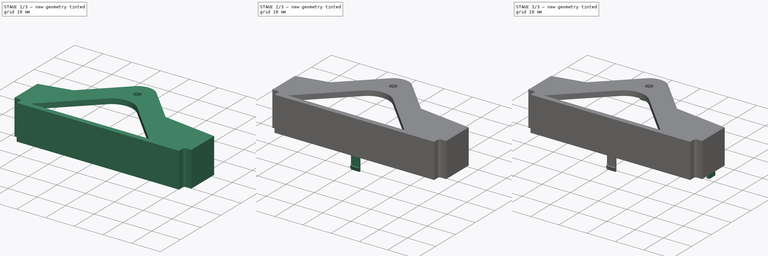
[diagram: build sequence overview — one tinted view per stage of 3, left to right]
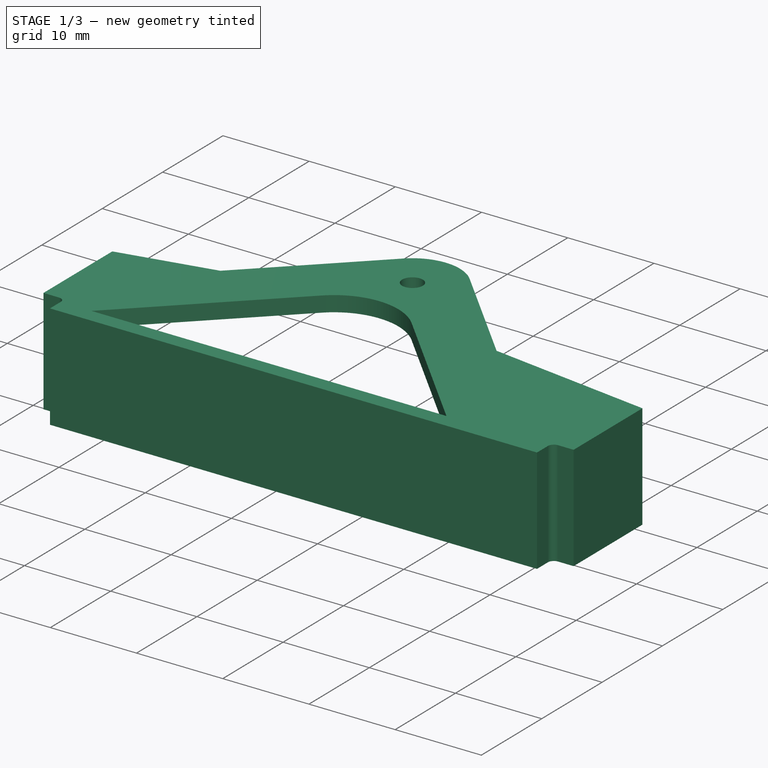
[diagram: stage 1 of 3 — iso view after this stage's code; geometry added in this stage tinted green]
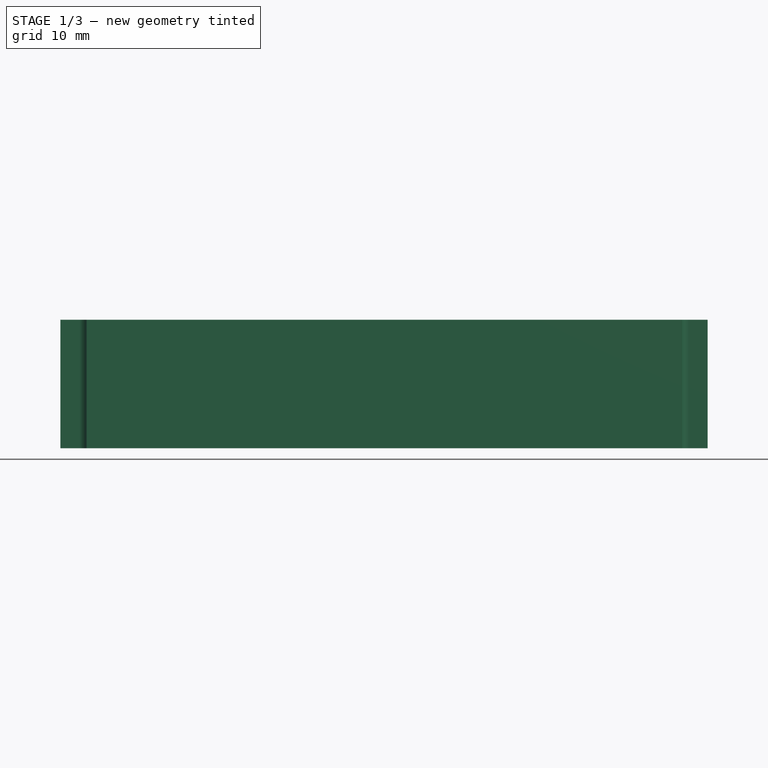
[diagram: stage 1 of 3 — front view after this stage's code; geometry added in this stage tinted green]
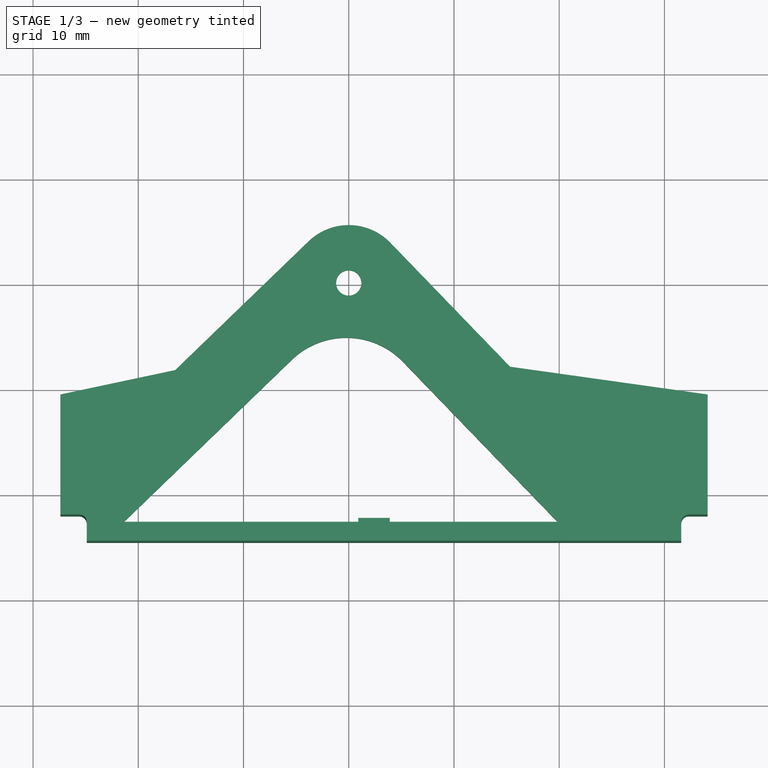
[diagram: stage 1 of 3 — top view after this stage's code; geometry added in this stage tinted green]
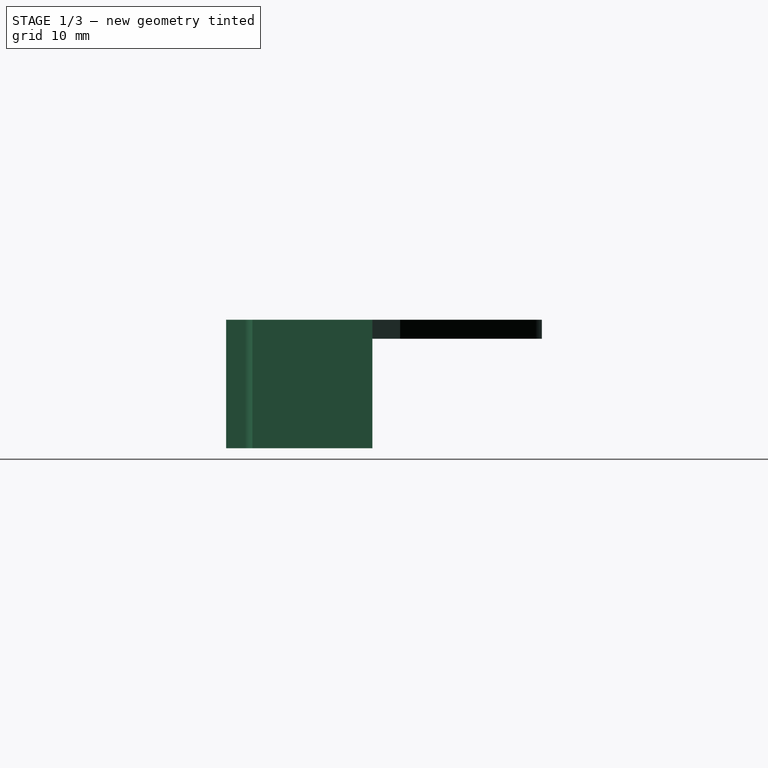
[diagram: stage 1 of 3 — right view after this stage's code; geometry added in this stage tinted green]
FCSTD DOCUMENT  (FreeCAD 0.16R4928 (Git))
Label: multi_camera_mount_a_p2
License: All rights reserved
LicenseURL: http://en.wikipedia.org/wiki/All_rights_reserved
objects: Sketcher::SketchObject×9, PartDesign::Pad×7, PartDesign::Pocket×1
note: 25 computed .brp shape members not serialized (recipe doc carries the construction recipe); baked Part::Feature solids carry a one-line shape summary decoded from their .brp

FEATURE [Sketcher::SketchObject] Sketch
  sketch-geometry (21):
    g0: Circle CenterX=0 CenterY=0 CenterZ=0 NormalX=0 NormalY=0 NormalZ=1 Radius=1.2
    g1: LineSegment StartX=-24.9 StartY=-24.5 StartZ=0 EndX=31.6 EndY=-24.5 EndZ=0
    g2: LineSegment StartX=-24.9 StartY=-24.5 StartZ=0 EndX=-24.9 EndY=-22.7 EndZ=0
    g3: LineSegment StartX=-25.6 StartY=-22 StartZ=0 EndX=-27.4 EndY=-22 EndZ=0
    g4: ArcOfCircle CenterX=-25.6 CenterY=-22.7 CenterZ=0 NormalX=0 NormalY=0 NormalZ=1 Radius=0.7 StartAngle=0 EndAngle=1.5708
    g5: LineSegment StartX=31.6 StartY=-24.5 StartZ=0 EndX=31.6 EndY=-22.7 EndZ=0
    g6: LineSegment StartX=32.3 StartY=-22 StartZ=0 EndX=34.1 EndY=-22 EndZ=0
    g7: ArcOfCircle CenterX=32.3 CenterY=-22.7 CenterZ=0 NormalX=0 NormalY=0 NormalZ=1 Radius=0.7 StartAngle=1.5708 EndAngle=3.14159
    g8: LineSegment StartX=-27.4 StartY=-22 StartZ=0 EndX=-27.4 EndY=-10.6 EndZ=0
    g9: LineSegment StartX=34.1 StartY=-22 StartZ=0 EndX=34.1 EndY=-10.6 EndZ=0
    g10: LineSegment StartX=-27.4 StartY=-10.6 StartZ=0 EndX=-16.4936 EndY=-8.28177 EndZ=0
    g11: LineSegment StartX=-16.4936 StartY=-8.28177 StartZ=0 EndX=-3.82062 EndY=3.95637 EndZ=0
    g12: LineSegment StartX=3.95637 StartY=3.82062 StartZ=0 EndX=15.3355 EndY=-7.96282 EndZ=0
    g13: LineSegment StartX=15.3355 StartY=-7.96282 StartZ=0 EndX=34.1 EndY=-10.6 EndZ=0
    g14: ArcOfCircle CenterX=0 CenterY=0 CenterZ=0 NormalX=0 NormalY=0 NormalZ=1 Radius=5.5 StartAngle=0.767945 EndAngle=2.33874
    g15: LineSegment StartX=-21.3472 StartY=-22.7 StartZ=0 EndX=19.8359 EndY=-22.7 EndZ=0
    g16: LineSegment StartX=-21.3472 StartY=-22.7 StartZ=0 EndX=-5.40855 EndY=-7.30822 EndZ=0
    g17: LineSegment StartX=5.1502 StartY=-7.49253 StartZ=0 EndX=19.8359 EndY=-22.7 EndZ=0
    g18: ArcOfCircle CenterX=-0.221326 CenterY=-12.6798 CenterZ=0 NormalX=0 NormalY=0 NormalZ=1 Radius=7.4673 StartAngle=0.767945 EndAngle=2.33874
    g19: LineSegment [constr] StartX=-5.40855 StartY=-7.30822 StartZ=0 EndX=-10.2712 EndY=-2.27284 EndZ=0
    g20: LineSegment [constr] StartX=5.1502 StartY=-7.49253 StartZ=0 EndX=10.1856 EndY=-2.62992 EndZ=0
  constraints (59):
    c: Coincident(g0,g-1)
    c: Radius(g0) = 1.2
    c: Horizontal(g1)
    c: Distance(g1) = 56.5
    c: Coincident(g2,g1)
    c: Vertical(g2)
    c: Horizontal(g3)
    c: Tangent(g3,g4) = -1.5708
    c: Tangent(g2,g4) = -1.5708
    c: Equal(g3,g2)
    c: Radius(g4) = 0.7
    c: DistanceX(g3,g1) = 2.5
    c: Coincident(g5,g1)
    c: Vertical(g5)
    c: Horizontal(g6)
    c: Tangent(g6,g7) = 1.5708
    c: Tangent(g5,g7) = 1.5708
    c: Equal(g5,g6)
    c: Equal(g6,g3)
    c: Equal(g4,g7)
    c: Coincident(g8,g3)
    c: Vertical(g8)
    c: Coincident(g9,g6)
    c: Vertical(g9)
    c: Equal(g9,g8)
    c: Distance(g8) = 11.4
    c: Coincident(g10,g8)
    c: Coincident(g11,g10)
    c: Angle(g8,g10) = 1.78024
    c: Coincident(g13,g12)
    c: Coincident(g13,g9)
    c: Angle(g13,g9) = 1.71042
    c: Angle(g13,g12) = 2.47837
    c: Coincident(g14,g-1)
    c: Coincident(g14,g11)
    c: Coincident(g14,g12)
    c: Radius(g14) = 5.5
    c: DistanceY(g-1,g1) = -24.5
    c: DistanceX(g-1,g9) = 34.1
    c: Perpendicular(g11,g12)
    c: Tangent(g14,g11)
    c: Tangent(g14,g12)
    c: Horizontal(g15)
    c: Coincident(g16,g15)
    c: Coincident(g17,g15)
    c: Tangent(g16,g18) = 1.5708
    c: Tangent(g17,g18) = 1.5708
    c: Parallel(g11,g16)
    c: DistanceY(g15,g1) = -1.8
    c: Coincident(g19,g16)
    c: PointOnObject(g19,g11)
    c: Coincident(g20,g17)
    c: PointOnObject(g20,g12)
    c: Perpendicular(g12,g20)
    c: Perpendicular(g19,g11)
    c: Equal(g19,g20)
    c: Perpendicular(g17,g20)
    c: Distance(g20) = 7
    c: PointOnObject(g18,g-2)
FEATURE [PartDesign::Pad] Pad
  Length = 1.8
  Length2 = 100
  Sketch = -> Sketch
  Type = 0
FEATURE [Sketcher::SketchObject] Sketch001
  ExternalGeometry = -> [Pad]
  Placement = pos=(0,0,0) rot=(1,0,0;3.14159rad)
  Support = -> Pad [Face20]
  sketch-geometry (17):
    g0: LineSegment StartX=-27.4 StartY=22 StartZ=0 EndX=-25.6 EndY=22 EndZ=0
    g1: LineSegment StartX=-24.9 StartY=24.5 StartZ=0 EndX=-24.9 EndY=22.7 EndZ=0
    g2: ArcOfCircle CenterX=-25.6 CenterY=22.7 CenterZ=0 NormalX=0 NormalY=0 NormalZ=1 Radius=0.7 StartAngle=4.71239 EndAngle=6.28319
    g3: LineSegment StartX=31.6 StartY=24.5 StartZ=0 EndX=-24.9 EndY=24.5 EndZ=0
    g4: LineSegment StartX=31.6 StartY=24.5 StartZ=0 EndX=31.6 EndY=22.7 EndZ=0
    g5: LineSegment StartX=32.3 StartY=22 StartZ=0 EndX=34.1 EndY=22 EndZ=0
    g6: LineSegment StartX=34.1 StartY=22 StartZ=0 EndX=34.1 EndY=10.6 EndZ=0
    g7: LineSegment StartX=-27.4 StartY=22 StartZ=0 EndX=-27.4 EndY=10.6 EndZ=0
    g8: LineSegment StartX=-27.4 StartY=10.6 StartZ=0 EndX=-25.6 EndY=10.6 EndZ=0
    g9: LineSegment StartX=-25.6 StartY=10.6 StartZ=0 EndX=-25.6 EndY=20.2 EndZ=0
    g10: ArcOfCircle CenterX=-25.6 CenterY=22.7 CenterZ=0 NormalX=0 NormalY=0 NormalZ=1 Radius=2.5 StartAngle=4.71239 EndAngle=6.28319
    g11: LineSegment StartX=-23.1 StartY=22.7 StartZ=0 EndX=29.8 EndY=22.7 EndZ=0
    g12: LineSegment [constr] StartX=-24.9 StartY=22.7 StartZ=0 EndX=-23.1 EndY=22.7 EndZ=0
    g13: ArcOfCircle CenterX=32.3 CenterY=22.7 CenterZ=0 NormalX=0 NormalY=0 NormalZ=1 Radius=2.5 StartAngle=3.14159 EndAngle=4.71239
    g14: LineSegment StartX=32.3 StartY=20.2 StartZ=0 EndX=32.3 EndY=10.6 EndZ=0
    g15: LineSegment StartX=32.3 StartY=10.6 StartZ=0 EndX=34.1 EndY=10.6 EndZ=0
    g16: ArcOfCircle CenterX=32.3 CenterY=22.7 CenterZ=0 NormalX=0 NormalY=0 NormalZ=1 Radius=0.7 StartAngle=3.14159 EndAngle=4.71239
  constraints (42):
    c: Coincident(g0,g-6)
    c: Coincident(g0,g-5)
    c: Coincident(g1,g-3)
    c: Coincident(g1,g-4)
    c: Coincident(g2,g-7)
    c: Coincident(g2,g0)
    c: Coincident(g2,g1)
    c: Coincident(g3,g-8)
    c: Coincident(g3,g1)
    c: Coincident(g4,g3)
    c: Coincident(g4,g-11)
    c: Coincident(g5,g-11)
    c: Coincident(g5,g-12)
    c: Coincident(g6,g5)
    c: Coincident(g6,g-13)
    c: Coincident(g7,g0)
    c: Coincident(g7,g-14)
    c: Coincident(g8,g7)
    c: Horizontal(g8)
    c: Coincident(g9,g8)
    c: Vertical(g9)
    c: Coincident(g10,g2)
    c: Coincident(g10,g9)
    c: Coincident(g11,g10)
    c: Horizontal(g11)
    c: PointOnObject(g-15,g11)
    c: PointOnObject(g0,g9)
    c: Coincident(g12,g1)
    c: Coincident(g12,g10)
    c: Equal(g12,g1)
    c: Coincident(g13,g-11)
    c: Coincident(g13,g11)
    c: Coincident(g14,g13)
    c: Vertical(g14)
    c: Coincident(g15,g14)
    c: Coincident(g15,g6)
    c: Horizontal(g15)
    c: Equal(g14,g9)
    c: Equal(g10,g13)
    c: Coincident(g16,g13)
    c: Coincident(g16,g4)
    c: Coincident(g16,g5)
FEATURE [PartDesign::Pad] Pad001
  Length = 10.4
  Length2 = 100
  Sketch = -> Sketch001
  Type = 0
FEATURE [Sketcher::SketchObject] Sketch002
  ExternalGeometry = -> [Pad001]
  Placement = pos=(0,-22.7,0) rot=(0,0.707107,0.707107;3.14159rad)
  Support = -> Pad001 [Face31]
  sketch-geometry (4):
    g0: LineSegment StartX=-0.9 StartY=-10.4 StartZ=0 EndX=-3.9 EndY=-10.4 EndZ=0
    g1: LineSegment StartX=-3.9 StartY=-10.4 StartZ=0 EndX=-3.9 EndY=-5.4 EndZ=0
    g2: LineSegment StartX=-3.9 StartY=-5.4 StartZ=0 EndX=-0.9 EndY=-5.4 EndZ=0
    g3: LineSegment StartX=-0.9 StartY=-5.4 StartZ=0 EndX=-0.9 EndY=-10.4 EndZ=0
  constraints (12):
    c: Coincident(g0,g1)
    c: Coincident(g1,g2)
    c: Coincident(g2,g3)
    c: Coincident(g3,g0)
    c: Horizontal(g0)
    c: Horizontal(g2)
    c: Vertical(g1)
    c: Vertical(g3)
    c: PointOnObject(g0,g-3)
    c: Distance(g2) = 3
    c: Distance(g1) = 5
    c: DistanceX(g0,g-3) = 27
FEATURE [PartDesign::Pad] Pad002
  Length = 0.5
  Length2 = 100
  Sketch = -> Sketch002
  Type = 0
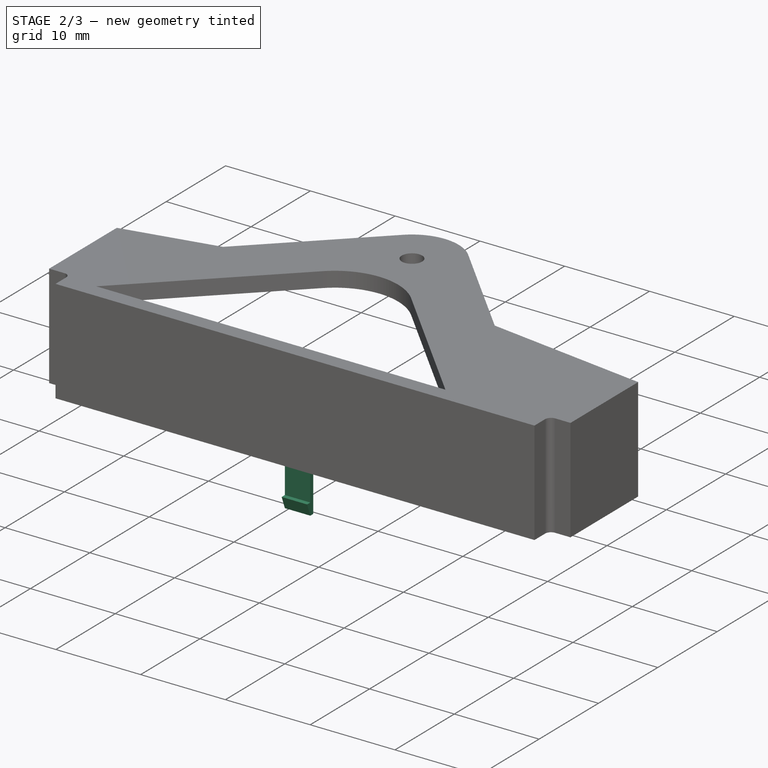
[diagram: stage 2 of 3 — iso view after this stage's code; geometry added in this stage tinted green]
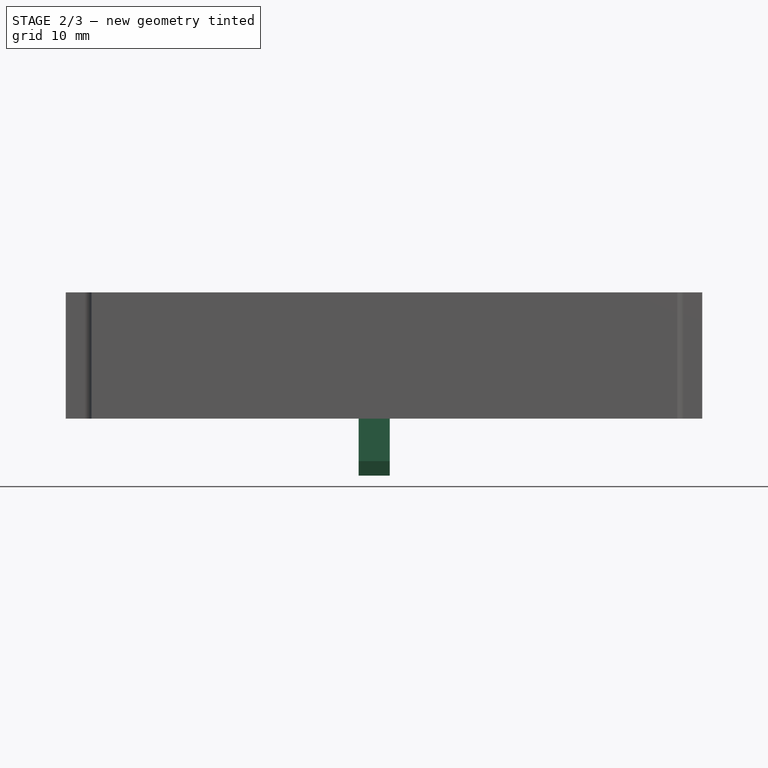
[diagram: stage 2 of 3 — front view after this stage's code; geometry added in this stage tinted green]
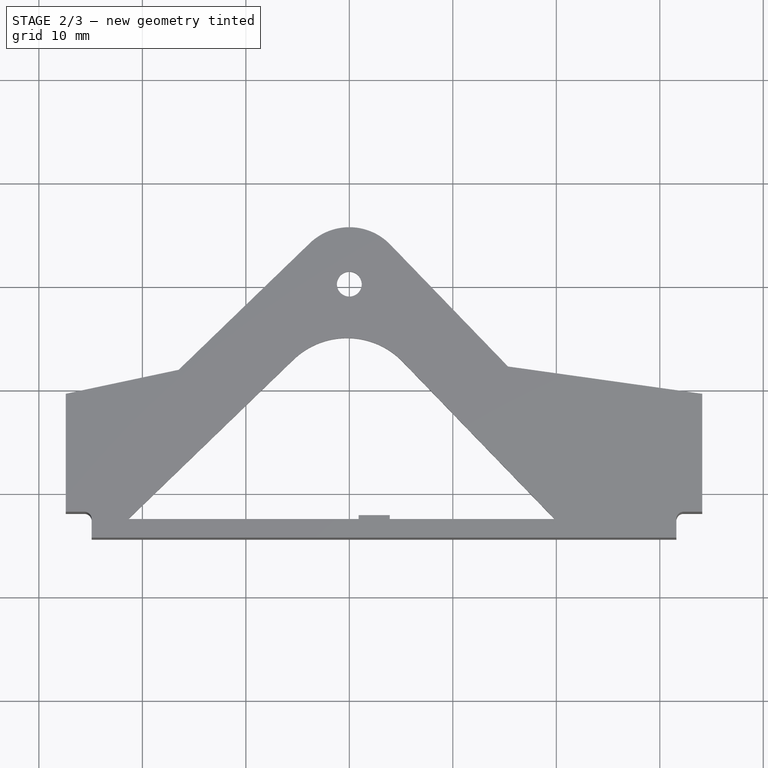
[diagram: stage 2 of 3 — top view after this stage's code; geometry added in this stage tinted green]
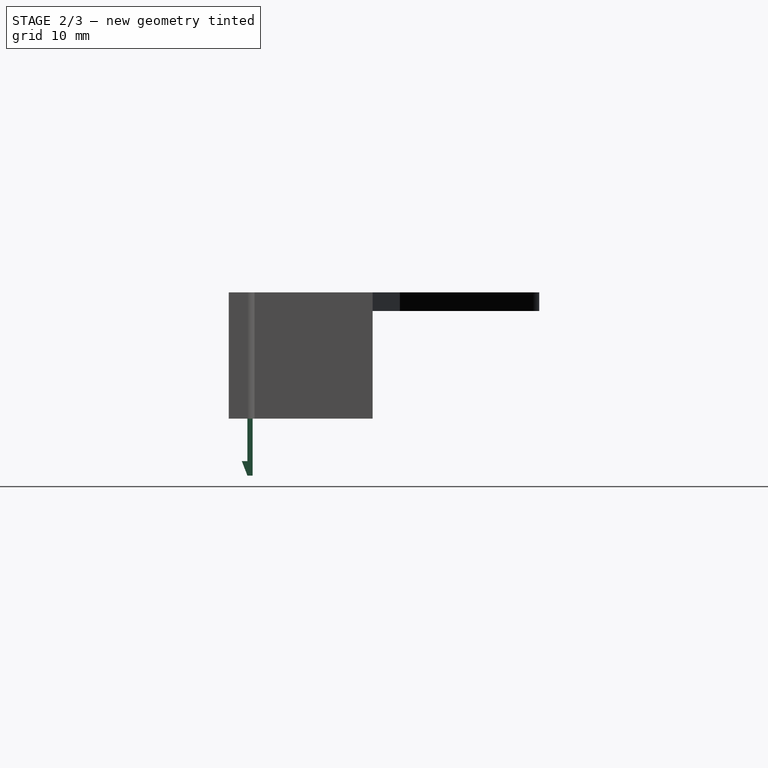
[diagram: stage 2 of 3 — right view after this stage's code; geometry added in this stage tinted green]
FEATURE [Sketcher::SketchObject] Sketch003
  ExternalGeometry = -> [Pad002]
  Placement = pos=(0,0,-10.4) rot=(1,0,0;3.14159rad)
  Support = -> Pad002 [Face42]
  sketch-geometry (4):
    g0: LineSegment StartX=0.9 StartY=22.7 StartZ=0 EndX=3.9 EndY=22.7 EndZ=0
    g1: LineSegment StartX=3.9 StartY=22.7 StartZ=0 EndX=3.9 EndY=22.2 EndZ=0
    g2: LineSegment StartX=3.9 StartY=22.2 StartZ=0 EndX=0.9 EndY=22.2 EndZ=0
    g3: LineSegment StartX=0.9 StartY=22.2 StartZ=0 EndX=0.9 EndY=22.7 EndZ=0
  constraints (10):
    c: Coincident(g0,g1)
    c: Coincident(g1,g2)
    c: Coincident(g2,g3)
    c: Coincident(g3,g0)
    c: Horizontal(g0)
    c: Horizontal(g2)
    c: Vertical(g1)
    c: Vertical(g3)
    c: Coincident(g0,g-3)
    c: Coincident(g1,g-4)
FEATURE [PartDesign::Pad] Pad003
  Length = 4.1
  Length2 = 100
  Sketch = -> Sketch003
  Type = 0
FEATURE [Sketcher::SketchObject] Sketch004
  ExternalGeometry = -> [Pad003]
  Placement = pos=(0,0,-14.5) rot=(1,0,0;3.14159rad)
  Support = -> Pad003 [Face46]
  sketch-geometry (4):
    g0: LineSegment StartX=3.9 StartY=22.2 StartZ=0 EndX=0.9 EndY=22.2 EndZ=0
    g1: LineSegment StartX=0.9 StartY=22.2 StartZ=0 EndX=0.9 EndY=23.24 EndZ=0
    g2: LineSegment StartX=0.9 StartY=23.24 StartZ=0 EndX=3.9 EndY=23.24 EndZ=0
    g3: LineSegment StartX=3.9 StartY=23.24 StartZ=0 EndX=3.9 EndY=22.2 EndZ=0
  constraints (11):
    c: Coincident(g0,g1)
    c: Coincident(g1,g2)
    c: Coincident(g2,g3)
    c: Coincident(g3,g0)
    c: Horizontal(g0)
    c: Horizontal(g2)
    c: Vertical(g1)
    c: Vertical(g3)
    c: Coincident(g0,g-4)
    c: PointOnObject(g-3,g1)
    c: DistanceY(g-3,g1) = 0.54
FEATURE [Sketcher::SketchObject] Sketch005
  ExternalGeometry = -> [Pad003]
  Placement = pos=(0.9,0,0) rot=(0.57735,-0.57735,-0.57735;2.0944rad)
  Support = -> Pad003 [Face44]
  sketch-geometry (4):
    g0: LineSegment StartX=22.2 StartY=-14.5 StartZ=0 EndX=23.24 EndY=-14.5 EndZ=0
    g1: LineSegment StartX=23.24 StartY=-14.5 StartZ=0 EndX=22.7 EndY=-15.9 EndZ=0
    g2: LineSegment StartX=22.7 StartY=-15.9 StartZ=0 EndX=22.2 EndY=-15.9 EndZ=0
    g3: LineSegment StartX=22.2 StartY=-15.9 StartZ=0 EndX=22.2 EndY=-14.5 EndZ=0
  constraints (11):
    c: Coincident(g0,g1)
    c: Coincident(g1,g2)
    c: Coincident(g2,g3)
    c: Coincident(g3,g0)
    c: Horizontal(g0)
    c: Horizontal(g2)
    c: Vertical(g3)
    c: Coincident(g0,g-3)
    c: DistanceX(g-4,g0) = 0.54
    c: PointOnObject(g1,g-5)
    c: Distance(g3) = 1.4
FEATURE [PartDesign::Pad] Pad004
  Length = 10
  Length2 = 100
  Reversed = true
  Sketch = -> Sketch005
  Type = 3
  UpToFace = -> Pad003 [Face45]
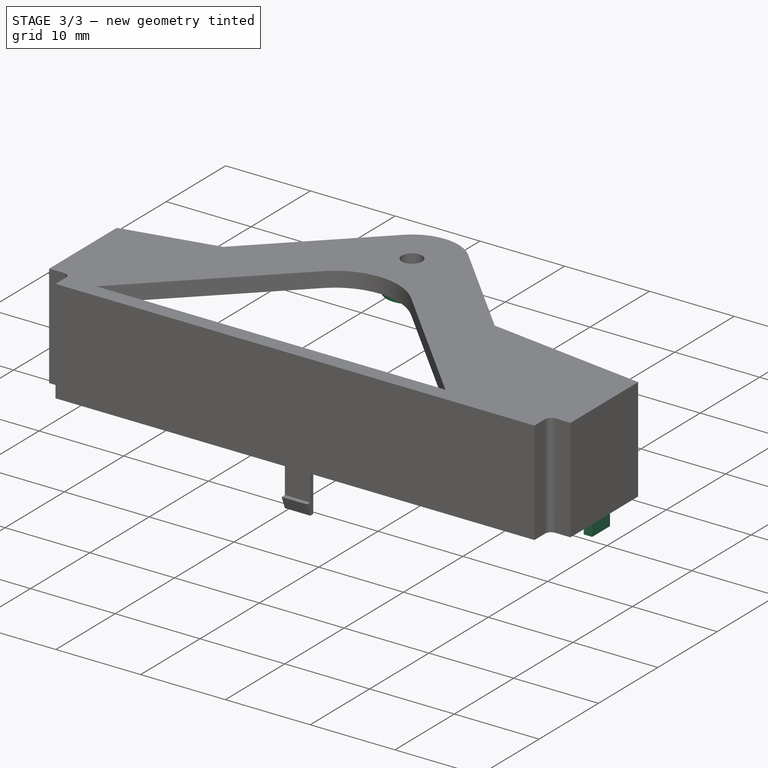
[diagram: stage 3 of 3 — iso view after this stage's code; geometry added in this stage tinted green]
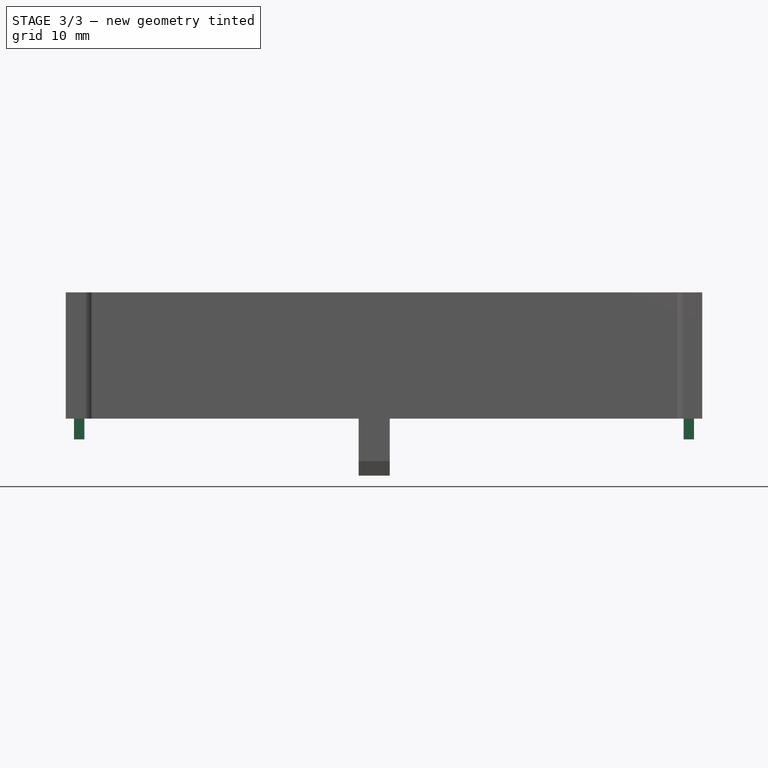
[diagram: stage 3 of 3 — front view after this stage's code; geometry added in this stage tinted green]
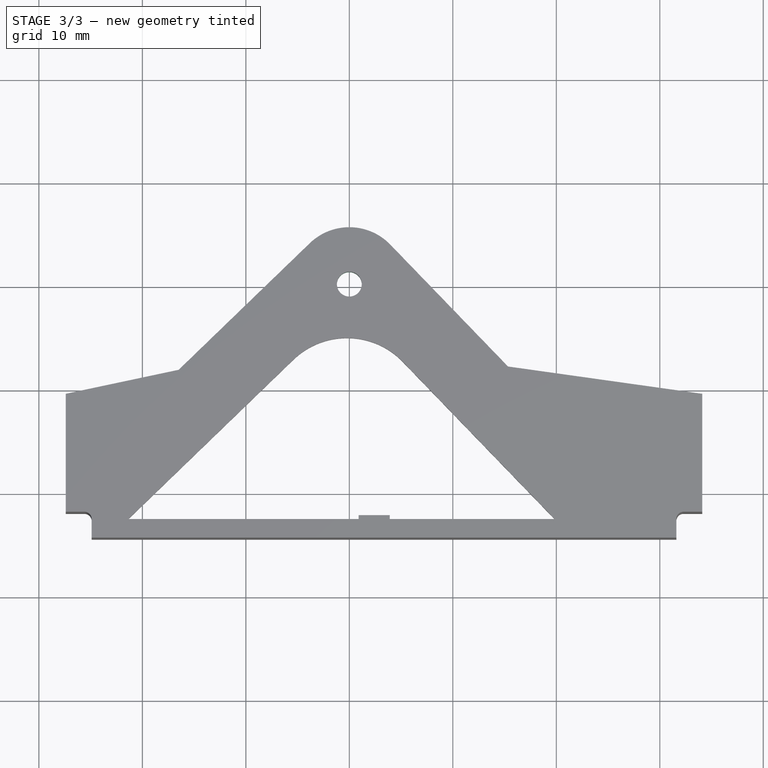
[diagram: stage 3 of 3 — top view after this stage's code; geometry added in this stage tinted green]
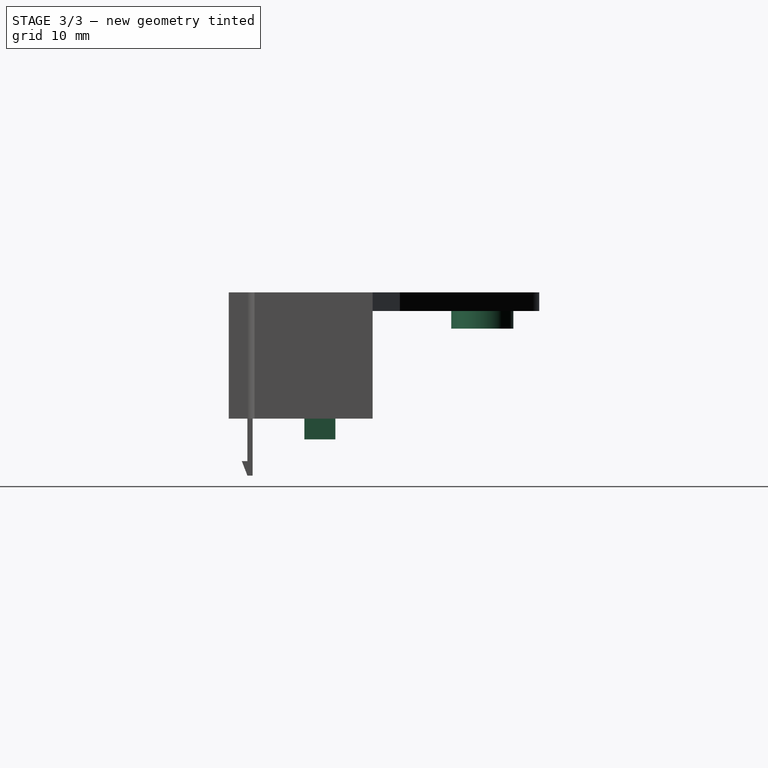
[diagram: stage 3 of 3 — right view after this stage's code; geometry added in this stage tinted green]
FEATURE [Sketcher::SketchObject] Sketch006
  ExternalGeometry = -> [Pad004]
  Placement = pos=(0,0,-10.4) rot=(1,0,0;3.14159rad)
  Support = -> Pad004 [Face32]
  sketch-geometry (8):
    g0: LineSegment StartX=-25.6 StartY=14.2 StartZ=0 EndX=-26.6 EndY=14.2 EndZ=0
    g1: LineSegment StartX=-26.6 StartY=14.2 StartZ=0 EndX=-26.6 EndY=17.2 EndZ=0
    g2: LineSegment StartX=-26.6 StartY=17.2 StartZ=0 EndX=-25.6 EndY=17.2 EndZ=0
    g3: LineSegment StartX=-25.6 StartY=17.2 StartZ=0 EndX=-25.6 EndY=14.2 EndZ=0
    g4: LineSegment StartX=32.3 StartY=14.2 StartZ=0 EndX=33.3 EndY=14.2 EndZ=0
    g5: LineSegment StartX=33.3 StartY=14.2 StartZ=0 EndX=33.3 EndY=17.2 EndZ=0
    g6: LineSegment StartX=33.3 StartY=17.2 StartZ=0 EndX=32.3 EndY=17.2 EndZ=0
    g7: LineSegment StartX=32.3 StartY=17.2 StartZ=0 EndX=32.3 EndY=14.2 EndZ=0
  constraints (24):
    c: Coincident(g0,g1)
    c: Coincident(g1,g2)
    c: Coincident(g2,g3)
    c: Coincident(g3,g0)
    c: Horizontal(g0)
    c: Horizontal(g2)
    c: Vertical(g1)
    c: Vertical(g3)
    c: PointOnObject(g0,g-3)
    c: Coincident(g4,g5)
    c: Coincident(g5,g6)
    c: Coincident(g6,g7)
    c: Coincident(g7,g4)
    c: Horizontal(g4)
    c: Horizontal(g6)
    c: Vertical(g5)
    c: Vertical(g7)
    c: PointOnObject(g4,g-4)
    c: Equal(g1,g5)
    c: PointOnObject(g4,g0)
    c: Equal(g2,g6)
    c: DistanceY(g2,g-3) = 3
    c: Distance(g0) = 1
    c: Distance(g1) = 3
FEATURE [PartDesign::Pad] Pad005
  Length = 2
  Length2 = 100
  Sketch = -> Sketch006
  Type = 0
FEATURE [Sketcher::SketchObject] Sketch007
  Placement = pos=(0,0,0) rot=(1,0,0;3.14159rad)
  Support = -> Pad005 [Face28]
  sketch-geometry (1):
    g0: Circle CenterX=0 CenterY=0 CenterZ=0 NormalX=0 NormalY=0 NormalZ=1 Radius=3
  constraints (2):
    c: Coincident(g0,g-1)
    c: Radius(g0) = 3
FEATURE [PartDesign::Pad] Pad006
  Length = 1.7
  Length2 = 100
  Sketch = -> Sketch007
  Type = 0
FEATURE [Sketcher::SketchObject] Sketch008
  ExternalGeometry = -> [Pad006]
  Support = -> Pad006 [Face32]
  sketch-geometry (1):
    g0: Circle CenterX=0 CenterY=0 CenterZ=0 NormalX=0 NormalY=0 NormalZ=1 Radius=1.20264
  constraints (1):
    c: Coincident(g0,g-1)
FEATURE [PartDesign::Pocket] Pocket
  Length = 5
  Sketch = -> Sketch008
  Type = 1
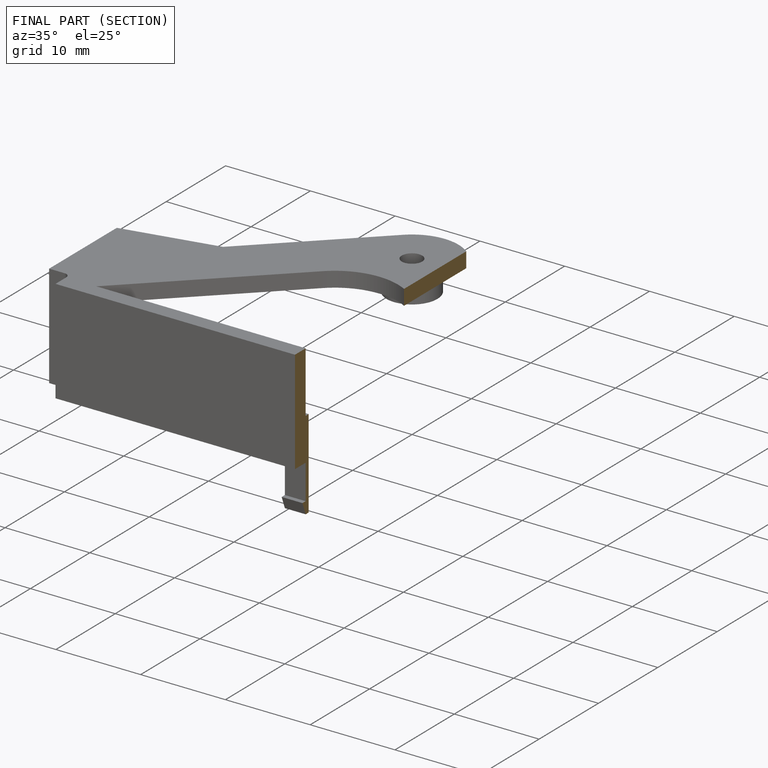
[diagram: finished part — half-section view (interior)]
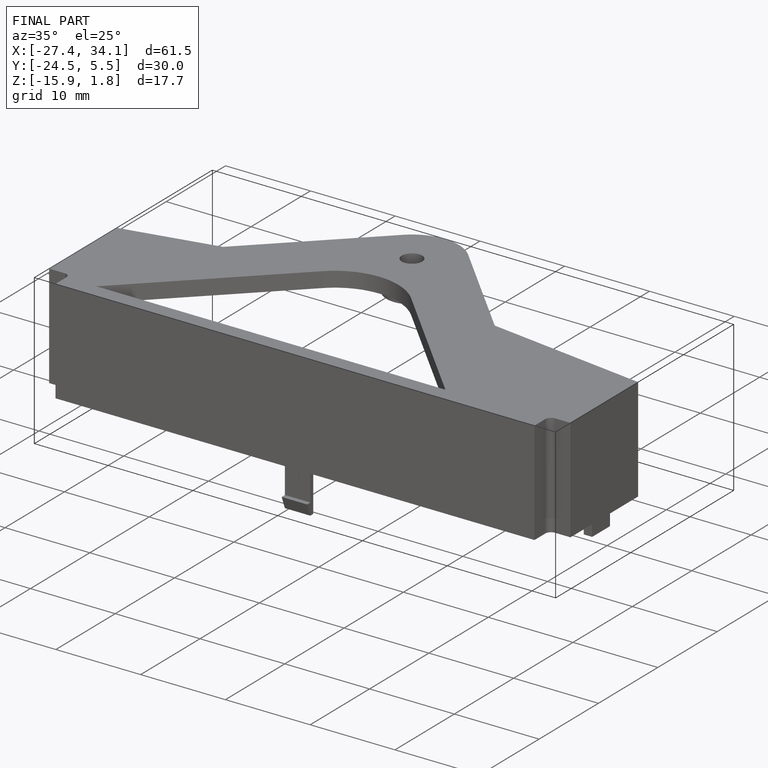
[diagram: finished part — iso view with bounding-box wireframe]
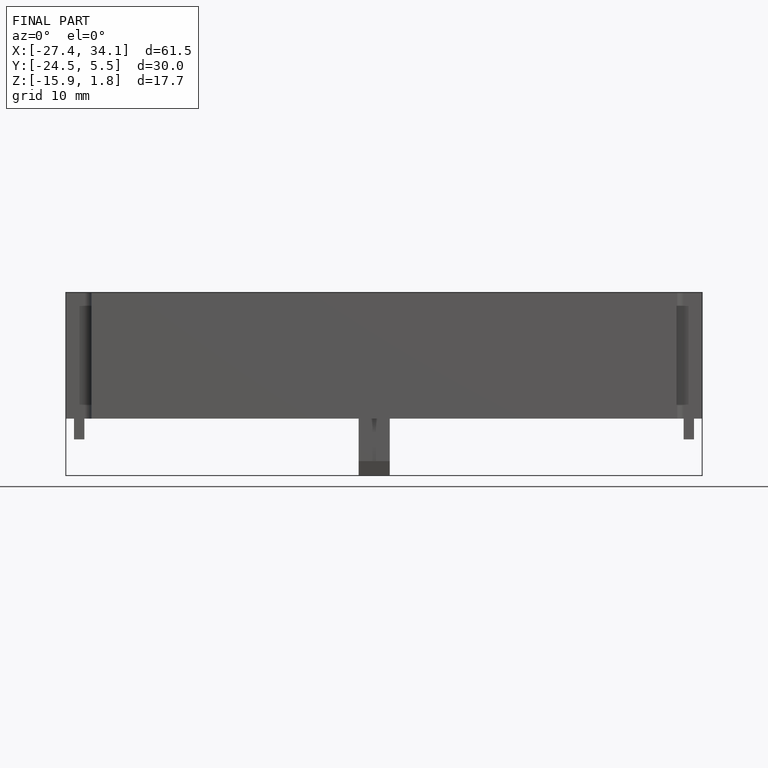
[diagram: finished part — front view with bounding-box wireframe]
